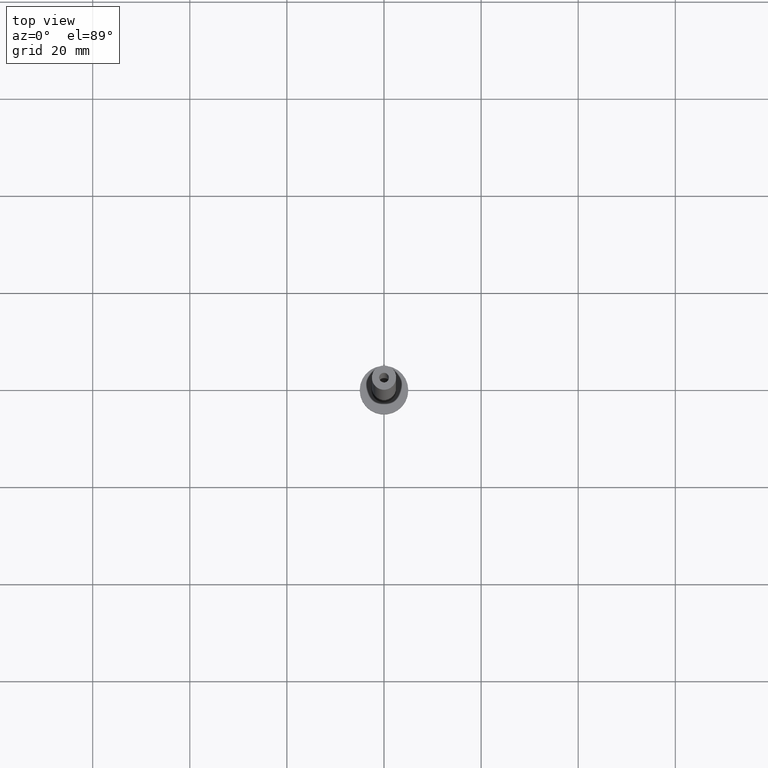
[diagram: clean part render]
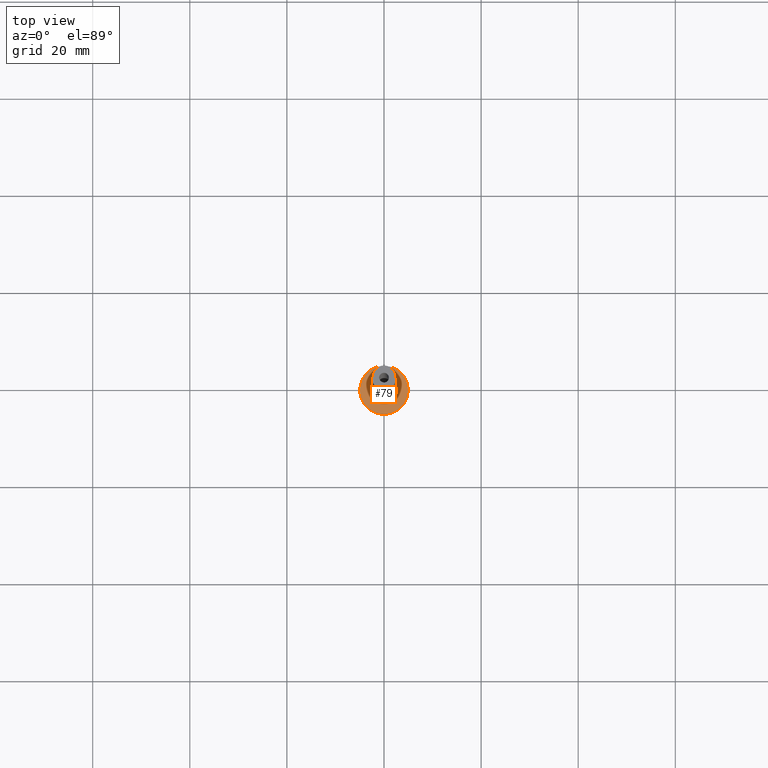
[diagram: same view with one face highlighted and labeled with its STEP entity id]
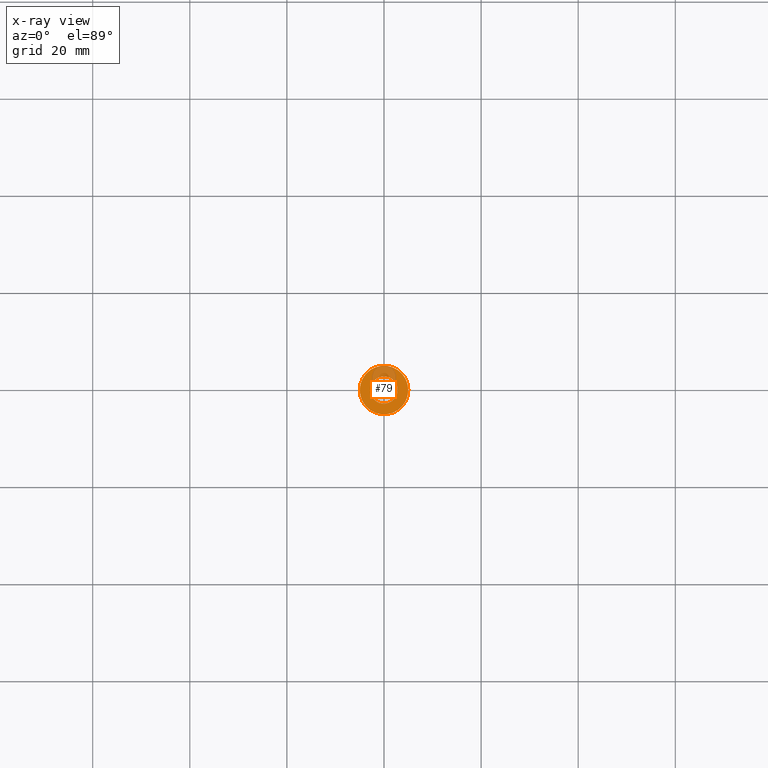
[diagram: x-ray of the same camera — body ghosted, the highlighted face saturated]
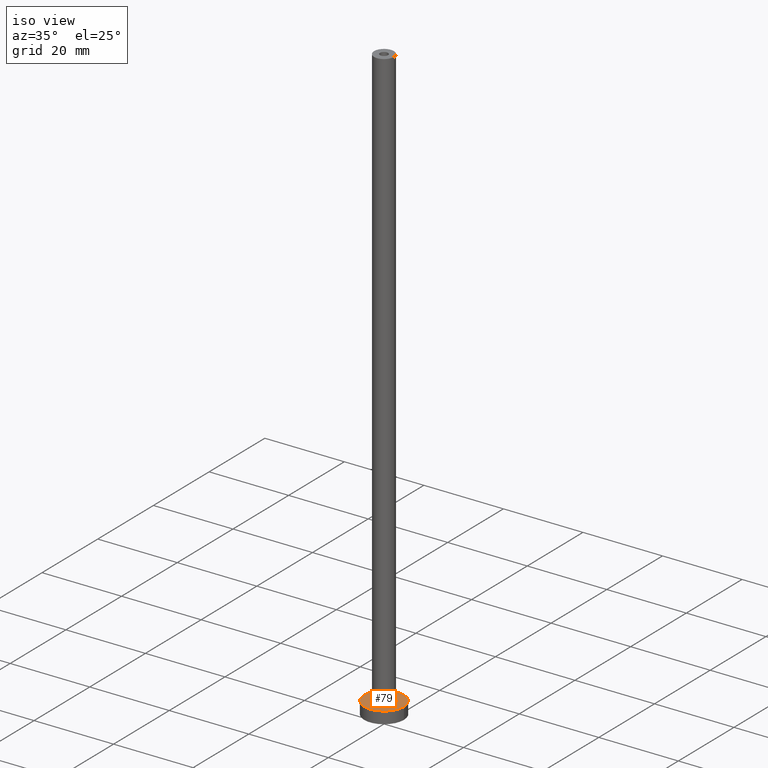
[diagram: same view with one face highlighted and labeled with its STEP entity id]
A machine part, top view. The second image highlights one B-rep face of the part: STEP entity #79.
The next image is the same camera in x-ray: the body ghosted, the highlighted face saturated — about 20% of this face is hidden behind the body in this view.
A second angle (iso view) of the same face is appended — the face is thin or edge-on in the first view.
In plain terms, the highlighted planar face has unit normal (0, 0, 1).
Its self-contained STEP definition (entity closure, byte-faithful):
#5 = CIRCLE ( 'NONE', #352, 2.799999999999999822 ) ;
#14 = VERTEX_POINT ( 'NONE', #436 ) ;
#19 = DIRECTION ( 'NONE',  ( 1.000000000000000000, 0.000000000000000000, 0.000000000000000000 ) ) ;
#21 = CARTESIAN_POINT ( 'NONE',  ( 0.000000000000000000, 0.000000000000000000, 3.000000000000000000 ) ) ;
#42 = AXIS2_PLACEMENT_3D ( 'NONE', #134, #281, #419 ) ;
#52 = PLANE ( 'NONE',  #172 ) ;
#79 = ADVANCED_FACE ( 'NONE', ( #127, #450 ), #52, .T. ) ;
#97 = CARTESIAN_POINT ( 'NONE',  ( 2.799999999999999822, 0.000000000000000000, 2.999999999999998668 ) ) ;
#104 = EDGE_LOOP ( 'NONE', ( #145, #442 ) ) ;
#105 = DIRECTION ( 'NONE',  ( -0.000000000000000000, -0.000000000000000000, -1.000000000000000000 ) ) ;
#108 = VERTEX_POINT ( 'NONE', #382 ) ;
#114 = ORIENTED_EDGE ( 'NONE', *, *, #237, .T. ) ;
#118 = VERTEX_POINT ( 'NONE', #132 ) ;
#127 = FACE_BOUND ( 'NONE', #104, .T. ) ;
#132 = CARTESIAN_POINT ( 'NONE',  ( -2.799999999999999822, 3.429011037612589276E-16, 2.999999999999998668 ) ) ;
#133 = DIRECTION ( 'NONE',  ( 1.000000000000000000, 0.000000000000000000, 0.000000000000000000 ) ) ;
#134 = CARTESIAN_POINT ( 'NONE',  ( 0.000000000000000000, 0.000000000000000000, 3.000000000000000000 ) ) ;
#141 = EDGE_CURVE ( 'NONE', #108, #14, #458, .T. ) ;
#145 = ORIENTED_EDGE ( 'NONE', *, *, #229, .T. ) ;
#168 = DIRECTION ( 'NONE',  ( 0.000000000000000000, 0.000000000000000000, 1.000000000000000000 ) ) ;
#172 = AXIS2_PLACEMENT_3D ( 'NONE', #21, #168, #241 ) ;
#183 = CARTESIAN_POINT ( 'NONE',  ( 0.000000000000000000, 0.000000000000000000, 3.000000000000000000 ) ) ;
#209 = EDGE_LOOP ( 'NONE', ( #439, #114 ) ) ;
#229 = EDGE_CURVE ( 'NONE', #254, #118, #5, .T. ) ;
#237 = EDGE_CURVE ( 'NONE', #14, #108, #268, .T. ) ;
#241 = DIRECTION ( 'NONE',  ( 1.000000000000000000, 0.000000000000000000, -0.000000000000000000 ) ) ;
#254 = VERTEX_POINT ( 'NONE', #97 ) ;
#268 = CIRCLE ( 'NONE', #375, 5.000000000000000000 ) ;
#281 = DIRECTION ( 'NONE',  ( -0.000000000000000000, -0.000000000000000000, -1.000000000000000000 ) ) ;
#309 = EDGE_CURVE ( 'NONE', #118, #254, #351, .T. ) ;
#348 = CARTESIAN_POINT ( 'NONE',  ( 0.000000000000000000, 0.000000000000000000, 3.000000000000000000 ) ) ;
#351 = CIRCLE ( 'NONE', #42, 2.799999999999999822 ) ;
#352 = AXIS2_PLACEMENT_3D ( 'NONE', #424, #105, #392 ) ;
#375 = AXIS2_PLACEMENT_3D ( 'NONE', #183, #391, #133 ) ;
#378 = DIRECTION ( 'NONE',  ( 0.000000000000000000, 0.000000000000000000, 1.000000000000000000 ) ) ;
#382 = CARTESIAN_POINT ( 'NONE',  ( -5.000000000000000000, 0.000000000000000000, 3.000000000000000000 ) ) ;
#391 = DIRECTION ( 'NONE',  ( 0.000000000000000000, 0.000000000000000000, 1.000000000000000000 ) ) ;
#392 = DIRECTION ( 'NONE',  ( 1.000000000000000000, 0.000000000000000000, 0.000000000000000000 ) ) ;
#419 = DIRECTION ( 'NONE',  ( 1.000000000000000000, 0.000000000000000000, 0.000000000000000000 ) ) ;
#424 = CARTESIAN_POINT ( 'NONE',  ( 0.000000000000000000, 0.000000000000000000, 3.000000000000000000 ) ) ;
#428 = AXIS2_PLACEMENT_3D ( 'NONE', #348, #378, #19 ) ;
#436 = CARTESIAN_POINT ( 'NONE',  ( 5.000000000000000000, 6.123233995736766282E-16, 3.000000000000000000 ) ) ;
#439 = ORIENTED_EDGE ( 'NONE', *, *, #141, .T. ) ;
#442 = ORIENTED_EDGE ( 'NONE', *, *, #309, .T. ) ;
#450 = FACE_OUTER_BOUND ( 'NONE', #209, .T. ) ;
#458 = CIRCLE ( 'NONE', #428, 5.000000000000000000 ) ;